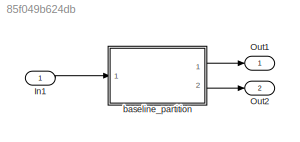
MODEL slx_85f049b624db
KIND model
CONFIG AbsTol = auto
CONFIG EnableMultiTasking = off
CONFIG FixedStep = auto
CONFIG MaxStep = auto
CONFIG MinStep = auto
CONFIG RelTol = 1e-3
CONFIG SampleTimeConstraint = Unconstrained
CONFIG Solver = VariableStepAuto
CONFIG SolverName = VariableStepAuto
CONFIG StartTime = 0.0
CONFIG StopTime = 10.0
BLOCK [Inport] In1
  IconDisplay = Port number
BLOCK [Outport] Out1
  IconDisplay = Port number
BLOCK [Outport] Out2
  IconDisplay = Port number
  Port = 2
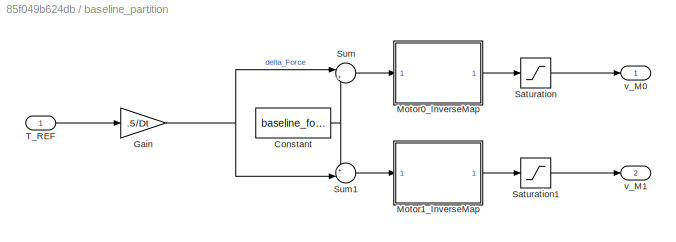
BLOCK [SubSystem] baseline_partition
  Ports = [1, 2]
  RequestExecContextInheritance = off
BLOCK [Constant] baseline_partition/Constant
  Value = baseline_force
BLOCK [Gain] baseline_partition/Gain
  Gain = .5/Dt
  OutDataTypeStr = Inherit: Inherit via internal rule
  ParamDataTypeStr = Inherit: Inherit via internal rule
  SaturateOnIntegerOverflow = off
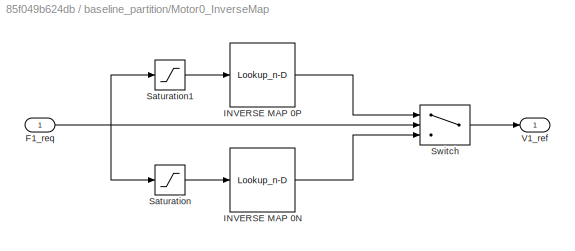
BLOCK [SubSystem] baseline_partition/Motor0_InverseMap
  Ports = [1, 1]
  RequestExecContextInheritance = off
BLOCK [Inport] baseline_partition/Motor0_InverseMap/F1_req
  IconDisplay = Port number
BLOCK [Lookup_n-D] baseline_partition/Motor0_InverseMap/INVERSE MAP 0N
  BeginIndexSearchUsingPreviousIndexResult = on
  BreakpointsForDimension1 = x_table_0N
  DiagnosticForOutOfRangeInput = Warning
  InternalRulePriority = Speed
  LookupTableObject = gigi
  NumberOfTableDimensions = 1
  Ports = [1, 1]
  RndMeth = Simplest
  Table = y_table_0N
BLOCK [Lookup_n-D] baseline_partition/Motor0_InverseMap/INVERSE MAP 0P
  BeginIndexSearchUsingPreviousIndexResult = on
  BreakpointsForDimension1 = x_table_0P
  DiagnosticForOutOfRangeInput = Warning
  InternalRulePriority = Speed
  LookupTableObject = gigi
  NumberOfTableDimensions = 1
  Ports = [1, 1]
  RndMeth = Simplest
  Table = y_table_0P
BLOCK [Saturate] baseline_partition/Motor0_InverseMap/Saturation
  InputPortMap = u0
  LowerLimit = max_force_1N
  Ports = [1, 1]
  UpperLimit = 0
BLOCK [Saturate] baseline_partition/Motor0_InverseMap/Saturation1
  InputPortMap = u0
  LowerLimit = 0
  Ports = [1, 1]
  UpperLimit = max_force_1P
BLOCK [Switch] baseline_partition/Motor0_InverseMap/Switch
  Criteria = u2 > Threshold
  InputSameDT = off
  SaturateOnIntegerOverflow = off
BLOCK [Outport] baseline_partition/Motor0_InverseMap/V1_ref
  IconDisplay = Port number
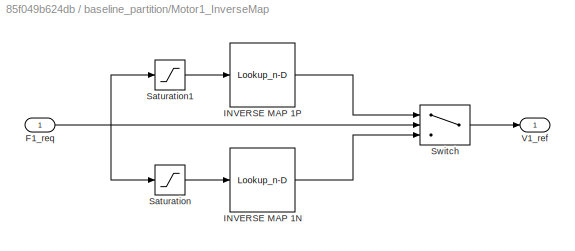
BLOCK [SubSystem] baseline_partition/Motor1_InverseMap
  Ports = [1, 1]
  RequestExecContextInheritance = off
BLOCK [Inport] baseline_partition/Motor1_InverseMap/F1_req
  IconDisplay = Port number
BLOCK [Lookup_n-D] baseline_partition/Motor1_InverseMap/INVERSE MAP 1N
  BeginIndexSearchUsingPreviousIndexResult = on
  BreakpointsForDimension1 = x_lut_1N
  DiagnosticForOutOfRangeInput = Warning
  InternalRulePriority = Speed
  LookupTableObject = gigi
  NumberOfTableDimensions = 1
  Ports = [1, 1]
  RndMeth = Simplest
  Table = y_lut_1N
BLOCK [Lookup_n-D] baseline_partition/Motor1_InverseMap/INVERSE MAP 1P
  BeginIndexSearchUsingPreviousIndexResult = on
  BreakpointsForDimension1 = x_lut_1P
  DiagnosticForOutOfRangeInput = Warning
  InternalRulePriority = Speed
  LookupTableObject = gigi
  NumberOfTableDimensions = 1
  Ports = [1, 1]
  RndMeth = Simplest
  Table = y_lut_1P
BLOCK [Saturate] baseline_partition/Motor1_InverseMap/Saturation
  InputPortMap = u0
  LowerLimit = max_force_1N
  Ports = [1, 1]
  UpperLimit = 0
BLOCK [Saturate] baseline_partition/Motor1_InverseMap/Saturation1
  InputPortMap = u0
  LowerLimit = 0
  Ports = [1, 1]
  UpperLimit = max_force_1P
BLOCK [Switch] baseline_partition/Motor1_InverseMap/Switch
  Criteria = u2 > Threshold
  InputSameDT = off
  SaturateOnIntegerOverflow = off
BLOCK [Outport] baseline_partition/Motor1_InverseMap/V1_ref
  IconDisplay = Port number
BLOCK [Saturate] baseline_partition/Saturation
  InputPortMap = u0
  LowerLimit = -V_nom
  Ports = [1, 1]
  UpperLimit = V_nom
BLOCK [Saturate] baseline_partition/Saturation1
  InputPortMap = u0
  LowerLimit = -V_nom
  Ports = [1, 1]
  UpperLimit = V_nom
BLOCK [Sum] baseline_partition/Sum
  IconShape = round
  InputSameDT = off
  Inputs = |++
  OutDataTypeStr = Inherit: Inherit via internal rule
  Ports = [2, 1]
  SaturateOnIntegerOverflow = off
BLOCK [Sum] baseline_partition/Sum1
  IconShape = round
  InputSameDT = off
  Inputs = +-|
  OutDataTypeStr = Inherit: Inherit via internal rule
  Ports = [2, 1]
  SaturateOnIntegerOverflow = off
BLOCK [Inport] baseline_partition/T_REF 
  IconDisplay = Port number
BLOCK [Outport] baseline_partition/v_M0 
  IconDisplay = Port number
BLOCK [Outport] baseline_partition/v_M1 
  IconDisplay = Port number
  Port = 2
LINE In1:1 -> baseline_partition:1
NET baseline_partition/Constant:1 -> baseline_partition/Sum1:1, baseline_partition/Sum:2
NET baseline_partition/Gain:1 -> baseline_partition/Sum1:2, baseline_partition/Sum:1
NET baseline_partition/Motor0_InverseMap/F1_req:1 -> baseline_partition/Motor0_InverseMap/Saturation1:1, baseline_partition/Motor0_InverseMap/Saturation:1, baseline_partition/Motor0_InverseMap/Switch:2
LINE baseline_partition/Motor0_InverseMap/INVERSE MAP 0N:1 -> baseline_partition/Motor0_InverseMap/Switch:3
LINE baseline_partition/Motor0_InverseMap/INVERSE MAP 0P:1 -> baseline_partition/Motor0_InverseMap/Switch:1
LINE baseline_partition/Motor0_InverseMap/Saturation1:1 -> baseline_partition/Motor0_InverseMap/INVERSE MAP 0P:1
LINE baseline_partition/Motor0_InverseMap/Saturation:1 -> baseline_partition/Motor0_InverseMap/INVERSE MAP 0N:1
LINE baseline_partition/Motor0_InverseMap/Switch:1 -> baseline_partition/Motor0_InverseMap/V1_ref:1
LINE baseline_partition/Motor0_InverseMap:1 -> baseline_partition/Saturation:1
NET baseline_partition/Motor1_InverseMap/F1_req:1 -> baseline_partition/Motor1_InverseMap/Saturation1:1, baseline_partition/Motor1_InverseMap/Saturation:1, baseline_partition/Motor1_InverseMap/Switch:2
LINE baseline_partition/Motor1_InverseMap/INVERSE MAP 1N:1 -> baseline_partition/Motor1_InverseMap/Switch:3
LINE baseline_partition/Motor1_InverseMap/INVERSE MAP 1P:1 -> baseline_partition/Motor1_InverseMap/Switch:1
LINE baseline_partition/Motor1_InverseMap/Saturation1:1 -> baseline_partition/Motor1_InverseMap/INVERSE MAP 1P:1
LINE baseline_partition/Motor1_InverseMap/Saturation:1 -> baseline_partition/Motor1_InverseMap/INVERSE MAP 1N:1
LINE baseline_partition/Motor1_InverseMap/Switch:1 -> baseline_partition/Motor1_InverseMap/V1_ref:1
LINE baseline_partition/Motor1_InverseMap:1 -> baseline_partition/Saturation1:1
LINE baseline_partition/Saturation1:1 -> baseline_partition/v_M1 :1
LINE baseline_partition/Saturation:1 -> baseline_partition/v_M0 :1
LINE baseline_partition/Sum1:1 -> baseline_partition/Motor1_InverseMap:1
LINE baseline_partition/Sum:1 -> baseline_partition/Motor0_InverseMap:1
LINE baseline_partition/T_REF :1 -> baseline_partition/Gain:1
LINE baseline_partition:1 -> Out1:1
LINE baseline_partition:2 -> Out2:1
note: NET lines group one-source signal fan-out (src -> all destinations, sorted); 1:1 wires keep LINE
